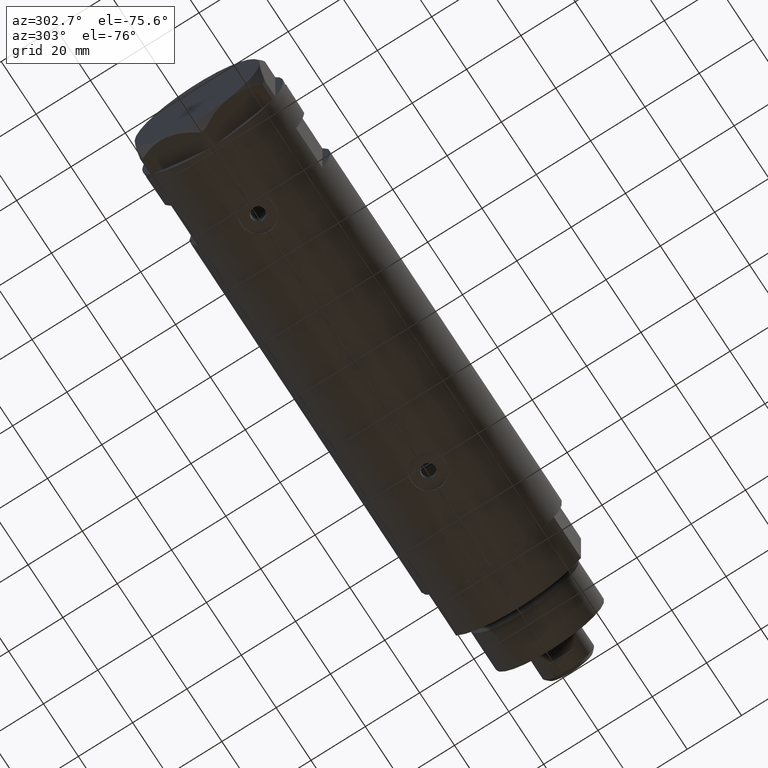
[diagram: clean part render]
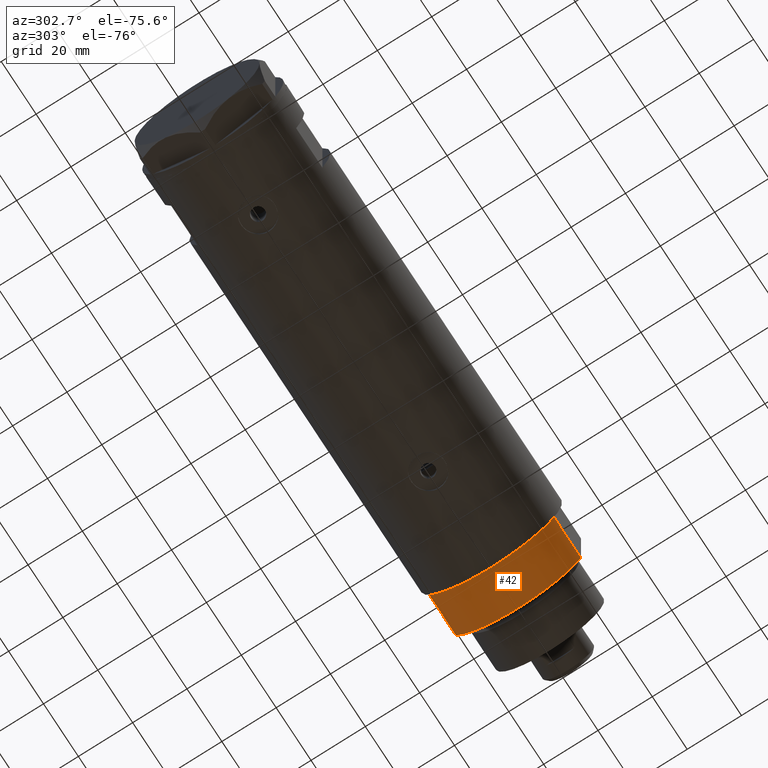
[diagram: same view with one face highlighted and labeled with its STEP entity id]
A machine part, auxiliary view. The second image highlights one B-rep face of the part: STEP entity #42.
In plain terms, the highlighted cylindrical surface (partial cylindrical patch) has radius 26 mm, axis along (-1, -0, 0).
Its self-contained STEP definition (entity closure, byte-faithful):
#13 = VERTEX_POINT ( 'NONE', #1983 ) ;
#42 = ADVANCED_FACE ( 'NONE', ( #4803 ), #47, .T. ) ;
#47 = CYLINDRICAL_SURFACE ( 'NONE', #800, 26.00000000000000355 ) ;
#91 = CARTESIAN_POINT ( 'NONE',  ( 0.000000000000000000, 0.000000000000000000, 0.000000000000000000 ) ) ;
#234 = CARTESIAN_POINT ( 'NONE',  ( 12.12435565298214790, 23.00000000000000355, 15.50000000000000000 ) ) ;
#423 = DIRECTION ( 'NONE',  ( 0.000000000000000000, 0.000000000000000000, 1.000000000000000000 ) ) ;
#472 = VECTOR ( 'NONE', #1177, 1000.000000000000000 ) ;
#572 = VECTOR ( 'NONE', #1833, 1000.000000000000000 ) ;
#800 = AXIS2_PLACEMENT_3D ( 'NONE', #2406, #4017, #2018 ) ;
#880 = EDGE_CURVE ( 'NONE', #4637, #1089, #2356, .T. ) ;
#1089 = VERTEX_POINT ( 'NONE', #234 ) ;
#1177 = DIRECTION ( 'NONE',  ( -0.000000000000000000, -0.000000000000000000, 1.000000000000000000 ) ) ;
#1389 = DIRECTION ( 'NONE',  ( 1.000000000000000000, 0.000000000000000000, 0.000000000000000000 ) ) ;
#1803 = CARTESIAN_POINT ( 'NONE',  ( 12.12435565298215323, -22.99999999999999645, 0.000000000000000000 ) ) ;
#1833 = DIRECTION ( 'NONE',  ( -0.000000000000000000, -0.000000000000000000, 1.000000000000000000 ) ) ;
#1936 = ORIENTED_EDGE ( 'NONE', *, *, #3230, .F. ) ;
#1983 = CARTESIAN_POINT ( 'NONE',  ( 12.12435565298215323, -22.99999999999999645, 15.50000000000000000 ) ) ;
#2018 = DIRECTION ( 'NONE',  ( -1.000000000000000000, 0.000000000000000000, 0.000000000000000000 ) ) ;
#2074 = AXIS2_PLACEMENT_3D ( 'NONE', #3018, #2178, #1389 ) ;
#2178 = DIRECTION ( 'NONE',  ( 0.000000000000000000, 0.000000000000000000, 1.000000000000000000 ) ) ;
#2356 = LINE ( 'NONE', #5089, #472 ) ;
#2406 = CARTESIAN_POINT ( 'NONE',  ( 0.000000000000000000, 0.000000000000000000, 15.50000000000000000 ) ) ;
#2653 = VERTEX_POINT ( 'NONE', #3302 ) ;
#2725 = ORIENTED_EDGE ( 'NONE', *, *, #3297, .F. ) ;
#2819 = ORIENTED_EDGE ( 'NONE', *, *, #880, .T. ) ;
#3005 = AXIS2_PLACEMENT_3D ( 'NONE', #91, #423, #4447 ) ;
#3018 = CARTESIAN_POINT ( 'NONE',  ( 0.000000000000000000, 0.000000000000000000, 15.50000000000000000 ) ) ;
#3070 = EDGE_LOOP ( 'NONE', ( #1936, #2725, #4261, #2819 ) ) ;
#3101 = EDGE_CURVE ( 'NONE', #2653, #4637, #4943, .T. ) ;
#3230 = EDGE_CURVE ( 'NONE', #13, #1089, #4862, .T. ) ;
#3297 = EDGE_CURVE ( 'NONE', #2653, #13, #3423, .T. ) ;
#3302 = CARTESIAN_POINT ( 'NONE',  ( 12.12435565298215323, -22.99999999999999645, 0.000000000000000000 ) ) ;
#3423 = LINE ( 'NONE', #1803, #572 ) ;
#4017 = DIRECTION ( 'NONE',  ( -0.000000000000000000, -0.000000000000000000, -1.000000000000000000 ) ) ;
#4261 = ORIENTED_EDGE ( 'NONE', *, *, #3101, .T. ) ;
#4447 = DIRECTION ( 'NONE',  ( 1.000000000000000000, 0.000000000000000000, 0.000000000000000000 ) ) ;
#4490 = CARTESIAN_POINT ( 'NONE',  ( 12.12435565298214080, 23.00000000000000355, 0.000000000000000000 ) ) ;
#4637 = VERTEX_POINT ( 'NONE', #4490 ) ;
#4803 = FACE_OUTER_BOUND ( 'NONE', #3070, .T. ) ;
#4862 = CIRCLE ( 'NONE', #2074, 26.00000000000000355 ) ;
#4943 = CIRCLE ( 'NONE', #3005, 26.00000000000000355 ) ;
#5089 = CARTESIAN_POINT ( 'NONE',  ( 12.12435565298215323, 23.00000000000000355, 0.000000000000000000 ) ) ;